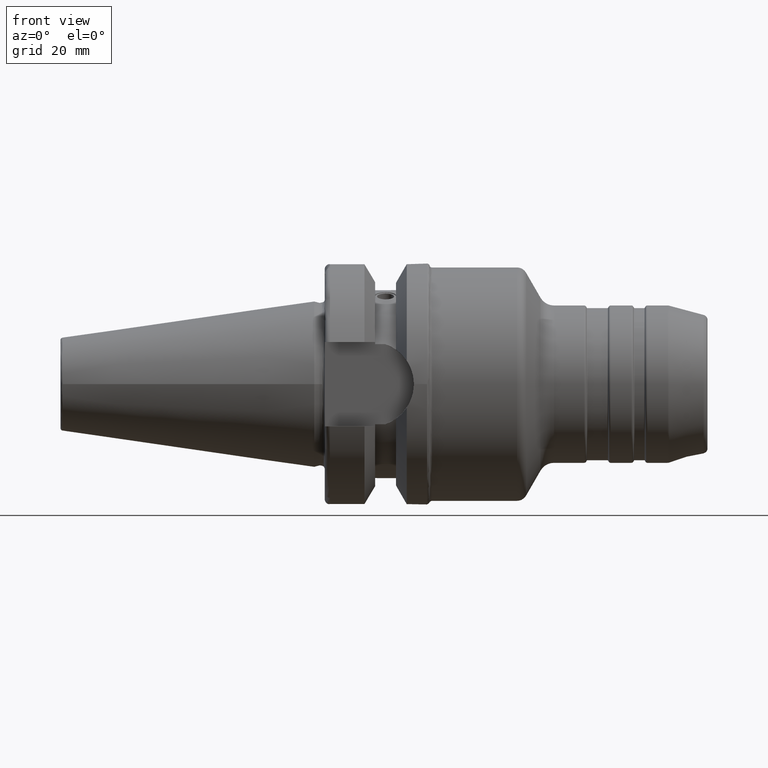
[diagram: clean part render]
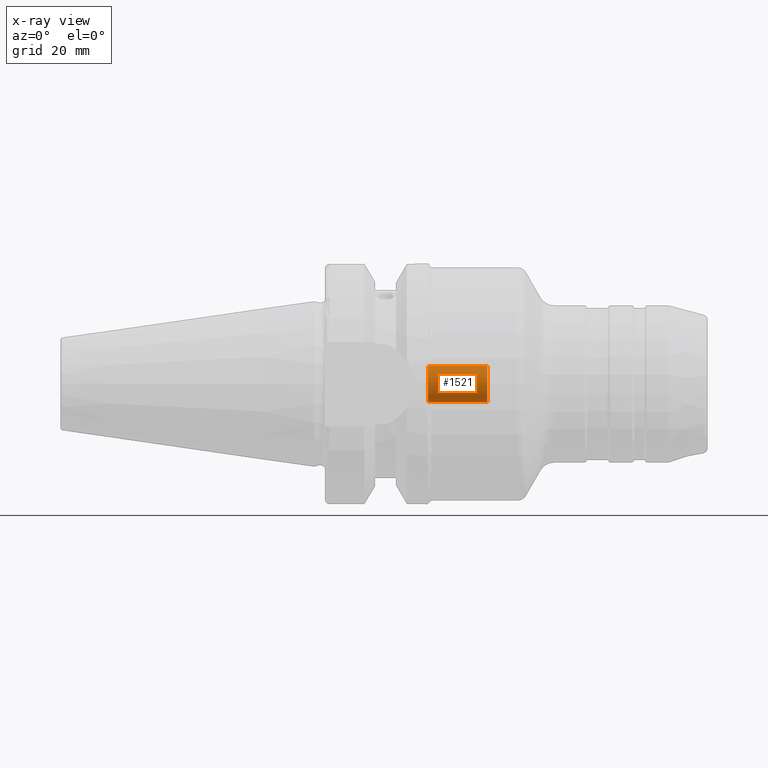
[diagram: x-ray — body ghosted, one internal face saturated and labeled with its STEP entity id]
A machine part, front view, then the same camera in x-ray: the body is ghosted and one INTERNAL B-rep face — a face not visible from any outside direction — is saturated and labeled: STEP entity #1521.
In plain terms, the highlighted cylindrical surface (bore or boss wall) has radius 3.4585 mm, axis along (1, 0, 0).
Its self-contained STEP definition (entity closure, byte-faithful):
#130=LINE('',#2469,#205);
#205=VECTOR('',#1986,3.4585);
#274=CYLINDRICAL_SURFACE('',#1679,3.4585);
#333=FACE_OUTER_BOUND('',#429,.T.);
#429=EDGE_LOOP('',(#1102,#1103,#1104,#1105,#1106));
#548=CIRCLE('',#1680,3.4585);
#549=CIRCLE('',#1681,3.4585);
#550=CIRCLE('',#1682,3.4585);
#643=VERTEX_POINT('',#2466);
#644=VERTEX_POINT('',#2468);
#645=VERTEX_POINT('',#2470);
#814=EDGE_CURVE('',#643,#643,#548,.T.);
#815=EDGE_CURVE('',#643,#644,#130,.T.);
#816=EDGE_CURVE('',#645,#644,#549,.T.);
#817=EDGE_CURVE('',#644,#645,#550,.T.);
#1102=ORIENTED_EDGE('',*,*,#814,.F.);
#1103=ORIENTED_EDGE('',*,*,#815,.T.);
#1104=ORIENTED_EDGE('',*,*,#816,.F.);
#1105=ORIENTED_EDGE('',*,*,#817,.F.);
#1106=ORIENTED_EDGE('',*,*,#815,.F.);
#1521=ADVANCED_FACE('',(#333),#274,.F.);
#1679=AXIS2_PLACEMENT_3D('',#2465,#1982,#1983);
#1680=AXIS2_PLACEMENT_3D('',#2467,#1984,#1985);
#1681=AXIS2_PLACEMENT_3D('',#2471,#1987,#1988);
#1682=AXIS2_PLACEMENT_3D('',#2472,#1989,#1990);
#1982=DIRECTION('center_axis',(1.,0.,0.));
#1983=DIRECTION('ref_axis',(0.,0.,-1.));
#1984=DIRECTION('center_axis',(-1.,0.,0.));
#1985=DIRECTION('ref_axis',(0.,0.,-1.));
#1986=DIRECTION('',(-1.,0.,0.));
#1987=DIRECTION('center_axis',(1.,0.,0.));
#1988=DIRECTION('ref_axis',(0.,0.,-1.));
#1989=DIRECTION('center_axis',(1.,0.,0.));
#1990=DIRECTION('ref_axis',(0.,0.,-1.));
#2465=CARTESIAN_POINT('Origin',(-106.499894865406,0.,0.));
#2466=CARTESIAN_POINT('',(33.,-4.23544095485112E-16,3.4585));
#2467=CARTESIAN_POINT('Origin',(33.,0.,0.));
#2468=CARTESIAN_POINT('',(21.7257963347172,-4.23544095485112E-16,3.4585));
#2469=CARTESIAN_POINT('',(-106.499894865406,-4.23544095485112E-16,3.4585));
#2470=CARTESIAN_POINT('',(21.7257963347172,1.65822684334857E-15,-3.45849999999999));
#2471=CARTESIAN_POINT('Origin',(21.7257963347172,0.,0.));
#2472=CARTESIAN_POINT('Origin',(21.7257963347172,0.,0.));